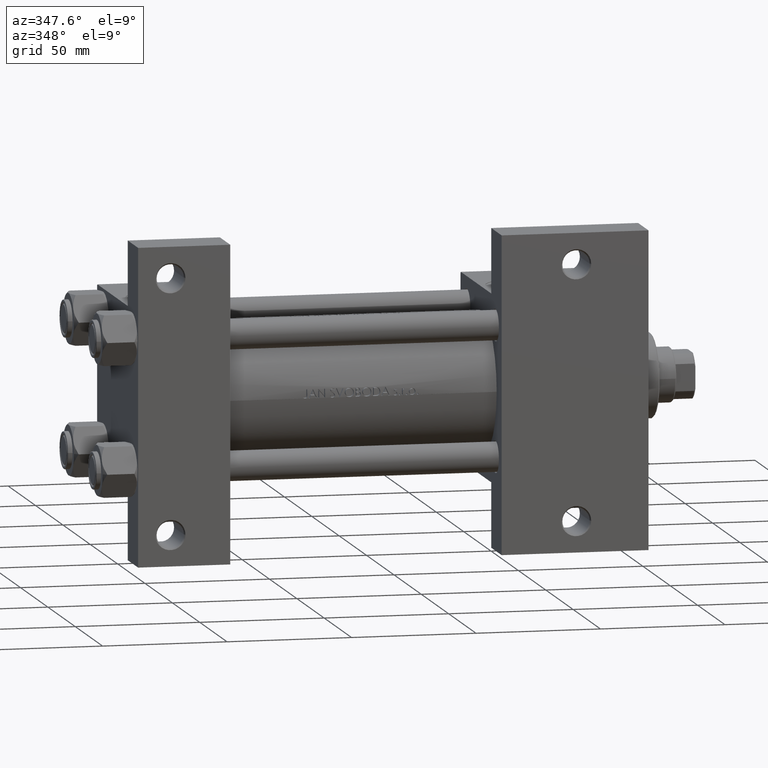
[diagram: clean part render]
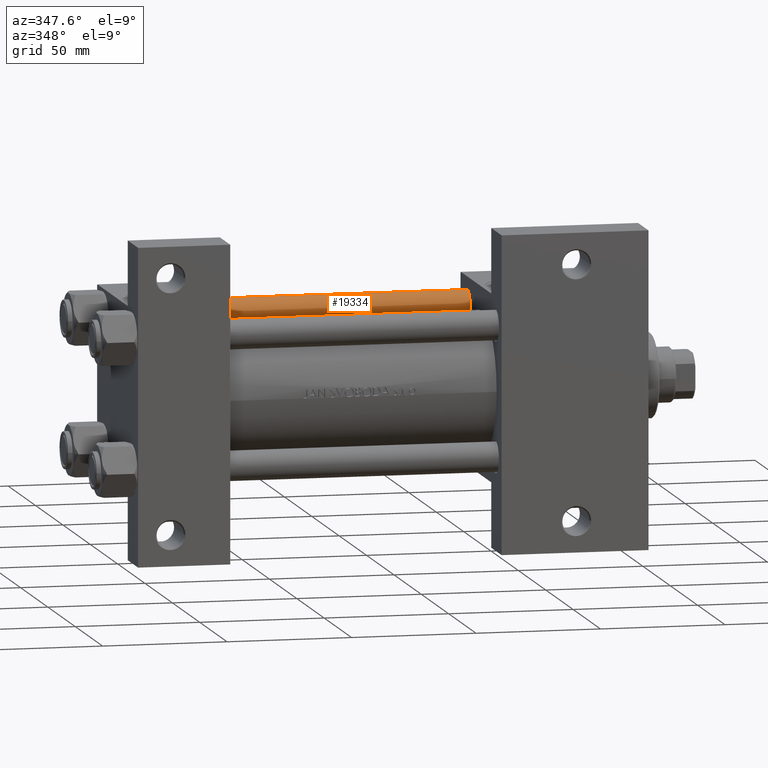
[diagram: same view with one face highlighted and labeled with its STEP entity id]
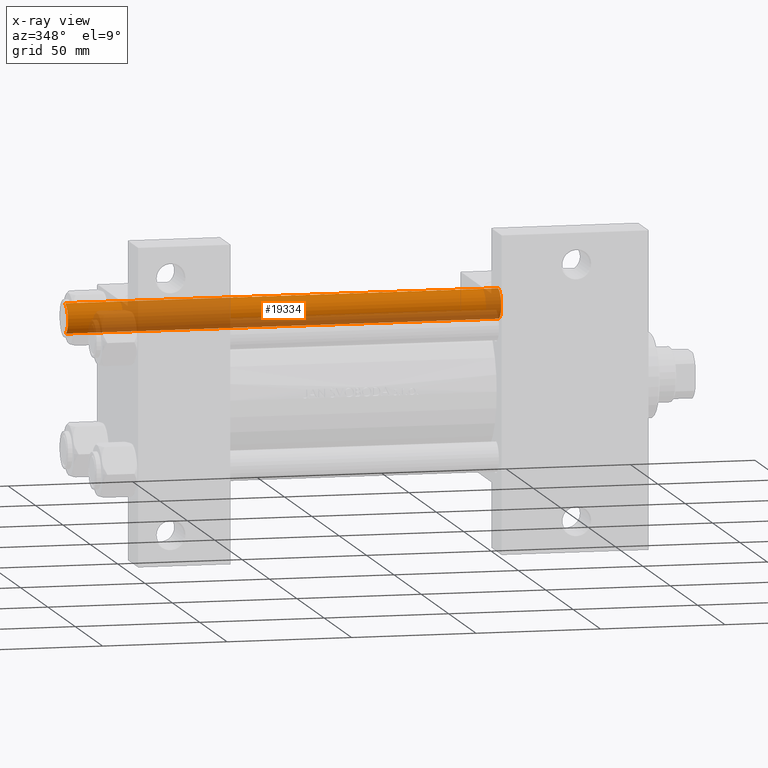
[diagram: x-ray of the same camera — body ghosted, the highlighted face saturated]
A machine part, auxiliary view. The second image highlights one B-rep face of the part: STEP entity #19334.
The next image is the same camera in x-ray: the body ghosted, the highlighted face saturated — about 51% of this face is hidden behind the body in this view.
In plain terms, the highlighted cylindrical surface (edge-blend (fillet) strip) has radius 6 mm, axis along (-1, -0, -0).
Its self-contained STEP definition (entity closure, byte-faithful):
#1613 = AXIS2_PLACEMENT_3D ( 'NONE', #28744, #6311, #47664 ) ;
#1722 = DIRECTION ( 'NONE',  ( 0.000000000000000000, 0.000000000000000000, -1.000000000000000000 ) ) ;
#2317 = CYLINDRICAL_SURFACE ( 'NONE', #1613, 6.000000000000000888 ) ;
#4753 = EDGE_CURVE ( 'NONE', #29353, #17226, #45445, .T. ) ;
#5320 = FACE_OUTER_BOUND ( 'NONE', #31619, .T. ) ;
#5808 = EDGE_CURVE ( 'NONE', #12804, #12408, #9136, .T. ) ;
#6311 = DIRECTION ( 'NONE',  ( -0.000000000000000000, -0.000000000000000000, -1.000000000000000000 ) ) ;
#6605 = EDGE_CURVE ( 'NONE', #29353, #12804, #44303, .T. ) ;
#6842 = DIRECTION ( 'NONE',  ( -0.000000000000000000, -0.000000000000000000, -1.000000000000000000 ) ) ;
#8085 = CARTESIAN_POINT ( 'NONE',  ( -6.000000000000000888, 0.000000000000000000, 174.4999999999999716 ) ) ;
#8590 = ORIENTED_EDGE ( 'NONE', *, *, #6605, .T. ) ;
#9136 = LINE ( 'NONE', #28318, #21199 ) ;
#12408 = VERTEX_POINT ( 'NONE', #26845 ) ;
#12804 = VERTEX_POINT ( 'NONE', #8085 ) ;
#13205 = DIRECTION ( 'NONE',  ( 1.000000000000000000, 0.000000000000000000, 0.000000000000000000 ) ) ;
#15513 = CARTESIAN_POINT ( 'NONE',  ( 0.000000000000000000, 0.000000000000000000, 0.5000000000000004441 ) ) ;
#17067 = ORIENTED_EDGE ( 'NONE', *, *, #5808, .T. ) ;
#17226 = VERTEX_POINT ( 'NONE', #43912 ) ;
#19334 = ADVANCED_FACE ( 'NONE', ( #5320 ), #2317, .T. ) ;
#20109 = DIRECTION ( 'NONE',  ( -0.000000000000000000, -0.000000000000000000, -1.000000000000000000 ) ) ;
#21061 = AXIS2_PLACEMENT_3D ( 'NONE', #15513, #22742, #48879 ) ;
#21199 = VECTOR ( 'NONE', #20109, 1000.000000000000000 ) ;
#22742 = DIRECTION ( 'NONE',  ( -0.000000000000000000, -0.000000000000000000, 1.000000000000000000 ) ) ;
#23484 = CIRCLE ( 'NONE', #21061, 6.000000000000000888 ) ;
#24404 = ORIENTED_EDGE ( 'NONE', *, *, #4753, .F. ) ;
#25799 = CARTESIAN_POINT ( 'NONE',  ( 6.000000000000000888, 7.347880794884120722E-16, 175.0000000000000000 ) ) ;
#26845 = CARTESIAN_POINT ( 'NONE',  ( -6.000000000000000888, 0.000000000000000000, 0.5000000000000004441 ) ) ;
#28318 = CARTESIAN_POINT ( 'NONE',  ( -6.000000000000000888, 0.000000000000000000, 175.0000000000000000 ) ) ;
#28744 = CARTESIAN_POINT ( 'NONE',  ( 0.000000000000000000, 0.000000000000000000, 175.0000000000000000 ) ) ;
#29353 = VERTEX_POINT ( 'NONE', #31289 ) ;
#31289 = CARTESIAN_POINT ( 'NONE',  ( 6.000000000000000888, 7.347880794884120722E-16, 174.4999999999999716 ) ) ;
#31619 = EDGE_LOOP ( 'NONE', ( #24404, #8590, #17067, #46581 ) ) ;
#42920 = EDGE_CURVE ( 'NONE', #12408, #17226, #23484, .T. ) ;
#43912 = CARTESIAN_POINT ( 'NONE',  ( 6.000000000000000888, 7.347880794884120722E-16, 0.5000000000000004441 ) ) ;
#44303 = CIRCLE ( 'NONE', #45896, 6.000000000000000888 ) ;
#45445 = LINE ( 'NONE', #25799, #48532 ) ;
#45896 = AXIS2_PLACEMENT_3D ( 'NONE', #47305, #1722, #13205 ) ;
#46581 = ORIENTED_EDGE ( 'NONE', *, *, #42920, .T. ) ;
#47305 = CARTESIAN_POINT ( 'NONE',  ( 0.000000000000000000, 0.000000000000000000, 174.4999999999999716 ) ) ;
#47664 = DIRECTION ( 'NONE',  ( -1.000000000000000000, 0.000000000000000000, 0.000000000000000000 ) ) ;
#48532 = VECTOR ( 'NONE', #6842, 1000.000000000000000 ) ;
#48879 = DIRECTION ( 'NONE',  ( 1.000000000000000000, 0.000000000000000000, 0.000000000000000000 ) ) ;